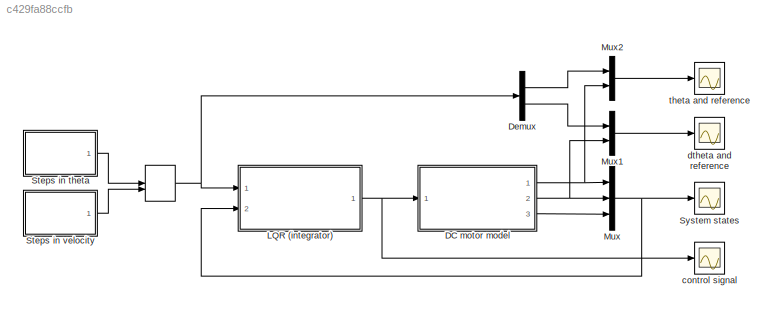
MODEL slx_c429fa88ccfb
KIND model
CONFIG AbsTol = auto
CONFIG FixedStep = auto
CONFIG MaxStep = 1e-2
CONFIG MinStep = auto
CONFIG RelTol = 1e-3
CONFIG SampleTimeConstraint = Unconstrained
CONFIG Solver = VariableStepAuto
CONFIG SolverMode = Auto
CONFIG SolverName = VariableStepAuto
CONFIG StartTime = 0.0
CONFIG StopTime = 10
BLOCK [ManualSwitch]     
BLOCK [ModelReference] DC motor model
  CopyOfModelName = DC_motor_c.slx
  ModelNameDialog = DC_motor_c.slx
  ModelReferenceVersion = 1.7
  Ports = [1, 3]
  Variant = off
BLOCK [Demux] Demux
  DisplayOption = bar
  Outputs = 2
  Ports = [1, 2]
BLOCK [ModelReference] LQR (integrator)
  CopyOfModelName = LQRi_c.slx
  ModelNameDialog = LQRi_c.slx
  ModelReferenceVersion = 1.9
  Ports = [2, 1]
  Variant = off
BLOCK [Mux] Mux
  DisplayOption = bar
  Inputs = 3
  Ports = [3, 1]
BLOCK [Mux] Mux1
  DisplayOption = bar
  Inputs = 2
  Ports = [2, 1]
BLOCK [Mux] Mux2
  DisplayOption = bar
  Inputs = 2
  Ports = [2, 1]
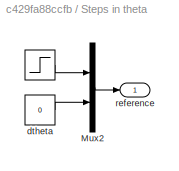
BLOCK [SubSystem] Steps in theta
  Ports = [0, 1]
  RequestExecContextInheritance = off
  Variant = off
BLOCK [Step] Steps in theta/  
  SampleTime = 0
  Time = 0
BLOCK [Mux] Steps in theta/Mux2
  DisplayOption = bar
  Inputs = 2
  Ports = [2, 1]
BLOCK [Constant] Steps in theta/dtheta
  Value = 0
BLOCK [Outport] Steps in theta/reference
  IconDisplay = Port number
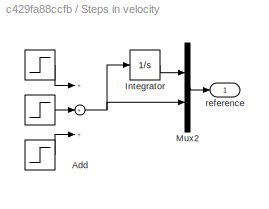
BLOCK [SubSystem] Steps in velocity
  Ports = [0, 1]
  RequestExecContextInheritance = off
  Variant = off
BLOCK [Step] Steps in velocity/  
  SampleTime = 0
  Time = 0
BLOCK [Step] Steps in velocity/   
  After = -2
  SampleTime = 0
  Time = 4
BLOCK [Step] Steps in velocity/    
  SampleTime = 0
  Time = 8
BLOCK [Sum] Steps in velocity/Add
  InputSameDT = off
  Inputs = +++
  OutDataTypeStr = Inherit: Inherit via internal rule
  Ports = [3, 1]
  SaturateOnIntegerOverflow = off
BLOCK [Integrator] Steps in velocity/Integrator
  Ports = [1, 1]
BLOCK [Mux] Steps in velocity/Mux2
  DisplayOption = bar
  Inputs = 2
  Ports = [2, 1]
BLOCK [Outport] Steps in velocity/reference
  IconDisplay = Port number
BLOCK [Scope] System states
  Ports = [1]
  ScopeSpecificationString = Simulink.scopes.TimeScopeBlockCfg('CurrentConfiguration', extmgr.ConfigurationSet(extmgr.Configuration('Core','General UI',true),extmgr.Configuration('Core','Source UI',true),extmgr.Configuration('Sources','WiredSimulink',true,'DataLoggingLimitDataPoints',true,'DataLoggingSaveFormat','Array','DataLoggingDecimation','1','DataLoggingDecimateData',true),extmgr.Configuration('Visuals','Time Domain',tr...<+1550ch>
BLOCK [Scope] control signal
  Ports = [1]
  ScopeSpecificationString = Simulink.scopes.TimeScopeBlockCfg('CurrentConfiguration', extmgr.ConfigurationSet(extmgr.Configuration('Core','General UI',true),extmgr.Configuration('Core','Source UI',true),extmgr.Configuration('Sources','WiredSimulink',true,'DataLoggingLimitDataPoints',true,'DataLoggingSaveFormat','Array','DataLoggingDecimation','1','DataLoggingDecimateData',true,'DataLoggingVariableName','ScopeData1'),extmgr.C...<+1500ch>
BLOCK [Scope] dtheta and reference
  Ports = [1]
  ScopeSpecificationString = Simulink.scopes.TimeScopeBlockCfg('CurrentConfiguration', extmgr.ConfigurationSet(extmgr.Configuration('Core','General UI',true),extmgr.Configuration('Core','Source UI',true),extmgr.Configuration('Sources','WiredSimulink',true,'DataLoggingVariableName','ScopeData1'),extmgr.Configuration('Visuals','Time Domain',true,'SerializedDisplays',{struct('MinYLimReal','-1.25','MaxYLimReal','1.25','YLabelReal...<+1396ch>
BLOCK [Scope] theta and reference
  Ports = [1]
  ScopeSpecificationString = Simulink.scopes.TimeScopeBlockCfg('CurrentConfiguration', extmgr.ConfigurationSet(extmgr.Configuration('Core','General UI',true),extmgr.Configuration('Core','Source UI',true),extmgr.Configuration('Sources','WiredSimulink',true,'DataLoggingVariableName','ScopeData1'),extmgr.Configuration('Visuals','Time Domain',true,'SerializedDisplays',{struct('MinYLimReal','-0.5','MaxYLimReal','4.5','YLabelReal',...<+1390ch>
NET     :1 -> Demux:1, LQR (integrator):1
NET DC motor model:1 -> Mux2:2, Mux:1
NET DC motor model:2 -> Mux1:2, Mux:2
LINE DC motor model:3 -> Mux:3
LINE Demux:1 -> Mux2:1
LINE Demux:2 -> Mux1:1
NET LQR (integrator):1 -> DC motor model:1, control signal:1
LINE Mux1:1 -> dtheta and reference:1
LINE Mux2:1 -> theta and reference:1
NET Mux:1 -> LQR (integrator):2, System states:1
LINE Steps in theta/  :1 -> Steps in theta/Mux2:1
LINE Steps in theta/Mux2:1 -> Steps in theta/reference:1
LINE Steps in theta/dtheta:1 -> Steps in theta/Mux2:2
LINE Steps in theta:1 ->     :1
LINE Steps in velocity/    :1 -> Steps in velocity/Add:3
LINE Steps in velocity/   :1 -> Steps in velocity/Add:2
LINE Steps in velocity/  :1 -> Steps in velocity/Add:1
NET Steps in velocity/Add:1 -> Steps in velocity/Integrator:1, Steps in velocity/Mux2:2
LINE Steps in velocity/Integrator:1 -> Steps in velocity/Mux2:1
LINE Steps in velocity/Mux2:1 -> Steps in velocity/reference:1
LINE Steps in velocity:1 ->     :2
note: NET lines group one-source signal fan-out (src -> all destinations, sorted); 1:1 wires keep LINE
